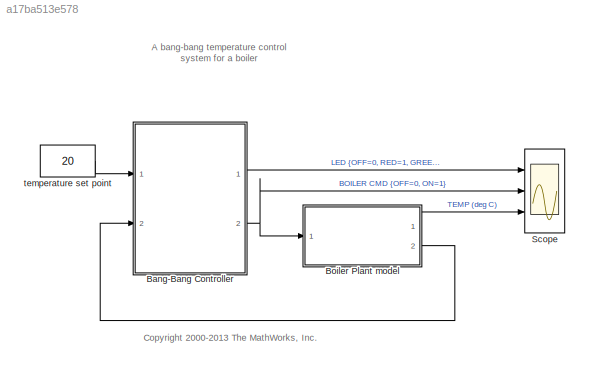
MODEL slx_a17ba513e578
KIND model
CONFIG AbsTol = auto
CONFIG EnableMultiTasking = on
CONFIG FixedStep = auto
CONFIG MaxStep = auto
CONFIG MinStep = auto
CONFIG RelTol = 1e-3
CONFIG SampleTimeConstraint = Unconstrained
CONFIG Solver = ode45
CONFIG SolverName = ode45
CONFIG StartTime = 0.0
CONFIG StopTime = 1400
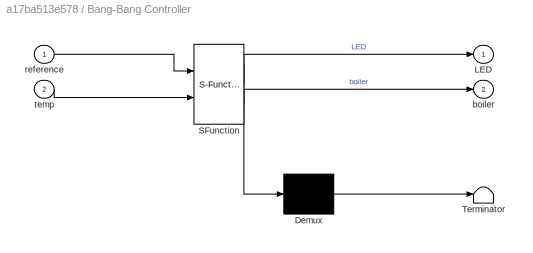
BLOCK [SubSystem] Bang-Bang Controller
  ErrorFcn = Stateflow.Translate.translate
  PermitHierarchicalResolution = ExplicitOnly
  Ports = [2, 2]
  RequestExecContextInheritance = off
  SFBlockType = Chart
  TreatAsAtomicUnit = on
  Variant = off
BLOCK [Demux] Bang-Bang Controller/ Demux 
  Outputs = 1
  Ports = [1, 1]
BLOCK [S-Function] Bang-Bang Controller/ SFunction 
  EnableBusSupport = off
  FunctionName = sf_sfun
  PortCounts = [2 3]
  Ports = [2, 3]
  SFcnIsStateOwnerBlock = off
  SFunctionDeploymentMode = off
  Tag = Stateflow S-Function sf_boiler 7
BLOCK [Terminator] Bang-Bang Controller/ Terminator 
BLOCK [Outport] Bang-Bang Controller/LED
  IconDisplay = Port number
BLOCK [Outport] Bang-Bang Controller/boiler
  IconDisplay = Port number
  Port = 2
BLOCK [Inport] Bang-Bang Controller/reference
  IconDisplay = Port number
BLOCK [Inport] Bang-Bang Controller/temp
  IconDisplay = Port number
  Port = 2
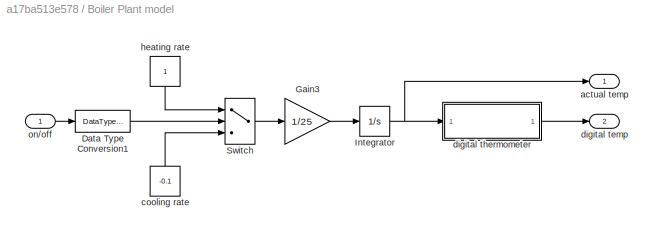
BLOCK [SubSystem] Boiler Plant model
  Ports = [1, 2]
  RequestExecContextInheritance = off
  Variant = off
BLOCK [DataTypeConversion] Boiler Plant model/Data Type Conversion1
  OutDataTypeStr = boolean
BLOCK [Gain] Boiler Plant model/Gain3
  Gain = 1/25
BLOCK [Integrator] Boiler Plant model/Integrator
  InitialCondition = 15
  Ports = [1, 1]
  ZeroCross = off
BLOCK [Switch] Boiler Plant model/Switch
  Threshold = .5
BLOCK [Outport] Boiler Plant model/actual temp
  IconDisplay = Port number
BLOCK [Constant] Boiler Plant model/cooling rate
  Value = -0.1
BLOCK [Outport] Boiler Plant model/digital temp
  IconDisplay = Port number
  Port = 2
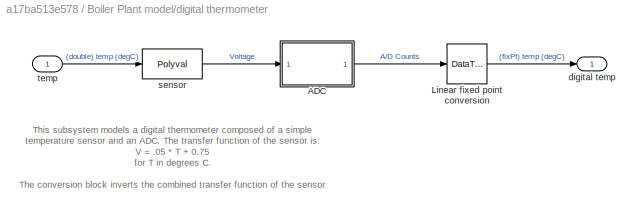
BLOCK [SubSystem] Boiler Plant model/digital thermometer
  Ports = [1, 1]
  RequestExecContextInheritance = off
  Variant = off
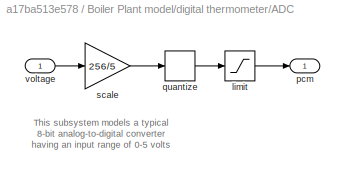
BLOCK [SubSystem] Boiler Plant model/digital thermometer/ADC
  Ports = [1, 1]
  RequestExecContextInheritance = off
  ShowPortLabels = none
  Variant = off
BLOCK [Saturate] Boiler Plant model/digital thermometer/ADC/limit
  InputPortMap = u0
  LowerLimit = 0
  Ports = [1, 1]
  UpperLimit = 255
BLOCK [Outport] Boiler Plant model/digital thermometer/ADC/pcm
  IconDisplay = Port number
BLOCK [Quantizer] Boiler Plant model/digital thermometer/ADC/quantize
  QuantizationInterval = 1
BLOCK [Gain] Boiler Plant model/digital thermometer/ADC/scale
  Gain = 256/5
BLOCK [Inport] Boiler Plant model/digital thermometer/ADC/voltage
  IconDisplay = Port number
BLOCK [DataTypeConversion] Boiler Plant model/digital thermometer/Linear fixed point conversion
  ConvertRealWorld = Stored Integer (SI)
  OutDataTypeStr = fixdt(1, 8, 5/256/0.05,-0.75/0.05)
  RndMeth = Floor
  SaturateOnIntegerOverflow = off
BLOCK [Outport] Boiler Plant model/digital thermometer/digital temp
  IconDisplay = Port number
BLOCK [Polyval] Boiler Plant model/digital thermometer/sensor
  Coefs = [ 0.05     0.75 ]
BLOCK [Inport] Boiler Plant model/digital thermometer/temp
  IconDisplay = Port number
BLOCK [Constant] Boiler Plant model/heating rate
BLOCK [Inport] Boiler Plant model/on//off
  IconDisplay = Port number
BLOCK [Scope] Scope
  NumInputPorts = 3
  Ports = [3]
  ScopeSpecificationString = Simulink.scopes.TimeScopeBlockCfg('CurrentConfiguration', extmgr.ConfigurationSet(extmgr.Configuration('Core','General UI',true),extmgr.Configuration('Core','Source UI',true),extmgr.Configuration('Sources','WiredSimulink',true,'DataLoggingSaveFormat','StructureWithTime','DataLoggingLimitDataPoints',true,'DataLoggingDecimation','1'),extmgr.Configuration('Visuals','Time Domain',true,'SerializedDispl...<+3080ch>
BLOCK [Constant] temperature set point
  OutDataTypeStr = Inherit: Inherit via back propagation
  Value = 20
ANNOTATION (root): A bang-bang temperature control system for a boiler
ANNOTATION (root): <copyright redacted>
ANNOTATION Boiler Plant model/digital thermometer: This subsystem models a digital thermometer composed of a simple temperature sensor and an ADC. The transfer function of the sensor is: V = .05 * T + 0.75 for T in degrees C. The conversion block inverts the combined transfer function of the sensor and ADC so that the output is an sfix(8) code representing T in degrees C.
ANNOTATION Boiler Plant model/digital thermometer/ADC: This subsystem models a typical 8-bit analog-to-digital converter having an input range of 0-5 volts
LINE Bang-Bang Controller:1 -> Scope:1
NET Bang-Bang Controller:2 -> Boiler Plant model:1, Scope:2
LINE Boiler Plant model/Data Type Conversion1:1 -> Boiler Plant model/Switch:2
LINE Boiler Plant model/Gain3:1 -> Boiler Plant model/Integrator:1
NET Boiler Plant model/Integrator:1 -> Boiler Plant model/actual temp:1, Boiler Plant model/digital thermometer:1
LINE Boiler Plant model/Switch:1 -> Boiler Plant model/Gain3:1
LINE Boiler Plant model/cooling rate:1 -> Boiler Plant model/Switch:3
LINE Boiler Plant model/digital thermometer/ADC/limit:1 -> Boiler Plant model/digital thermometer/ADC/pcm:1
LINE Boiler Plant model/digital thermometer/ADC/quantize:1 -> Boiler Plant model/digital thermometer/ADC/limit:1
LINE Boiler Plant model/digital thermometer/ADC/scale:1 -> Boiler Plant model/digital thermometer/ADC/quantize:1
LINE Boiler Plant model/digital thermometer/ADC/voltage:1 -> Boiler Plant model/digital thermometer/ADC/scale:1
LINE Boiler Plant model/digital thermometer/ADC:1 -> Boiler Plant model/digital thermometer/Linear fixed point conversion:1
LINE Boiler Plant model/digital thermometer/Linear fixed point conversion:1 -> Boiler Plant model/digital thermometer/digital temp:1
LINE Boiler Plant model/digital thermometer/sensor:1 -> Boiler Plant model/digital thermometer/ADC:1
LINE Boiler Plant model/digital thermometer/temp:1 -> Boiler Plant model/digital thermometer/sensor:1
LINE Boiler Plant model/digital thermometer:1 -> Boiler Plant model/digital temp:1
LINE Boiler Plant model/heating rate:1 -> Boiler Plant model/Switch:1
LINE Boiler Plant model/on//off:1 -> Boiler Plant model/Data Type Conversion1:1
LINE Boiler Plant model:1 -> Scope:3
LINE Boiler Plant model:2 -> Bang-Bang Controller:2
LINE temperature set point:1 -> Bang-Bang Controller:1
note: NET lines group one-source signal fan-out (src -> all destinations, sorted); 1:1 wires keep LINE
CHART Bang-Bang
Controller states=10 transitions=22
  STATE_LABEL 'Heater'
  STATE_LABEL 'Off\nentry: turn_boiler(OFF)'
  STATE_LABEL 'Flash\nen: flash_LED()'
  STATE_LABEL 'after(5,sec)'
  STATE_LABEL 'On\nen: turn_boiler(ON)\ndu: flash_LED()'
  STATE_LABEL 'HIGH'
  STATE_LABEL 'NORM'
  STATE_LABEL 'b = warm()'
  STATE_LABEL '{b = ~cold()}'
  STATE_LABEL '[Heater.On.warm()]'
  STATE_LABEL '[warm()]'
  STATE_LABEL 'H'
  STATE_LABEL 'after(20,sec)'
  STATE_LABEL 'after(40,sec)\n[cold()]'
  STATE_LABEL '[Heater.On.warm()]'
  STATE_LABEL '[Heater.On.warm()]'
  STATE_LABEL 'Off\nentry: turn_boiler(OFF)'
  STATE_LABEL 'Flash\nen: flash_LED()'
  STATE_LABEL 'after(5,sec)'
  STATE_LABEL 'Flash\nen: flash_LED()'
  STATE_LABEL 'On\nen: turn_boiler(ON)\ndu: flash_LED()'
  STATE_LABEL 'HIGH'
  STATE_LABEL 'NORM'
  STATE_LABEL 'b = warm()'
  STATE_LABEL '{b = ~cold()}'
  STATE_LABEL '[Heater.On.warm()]'
  STATE_LABEL '[warm()]'
  STATE_LABEL 'H'
  STATE_LABEL 'HIGH'
  STATE_LABEL 'NORM'
  STATE_LABEL 'b = warm()'
  STATE_LABEL '{b = ~cold()}'
  STATE_LABEL 'turn_boiler(mode)'
  STATE_LABEL '[mode==ON]'
  STATE_LABEL '{color=RED}'
  STATE_LABEL '{color=GREEN}'
  STATE_LABEL '{LED=color;\n boiler=mode}'
  STATE_LABEL 'flash_LED()'
  STATE_LABEL '[LED==OFF]'
  STATE_LABEL '{LED=OFF}'
